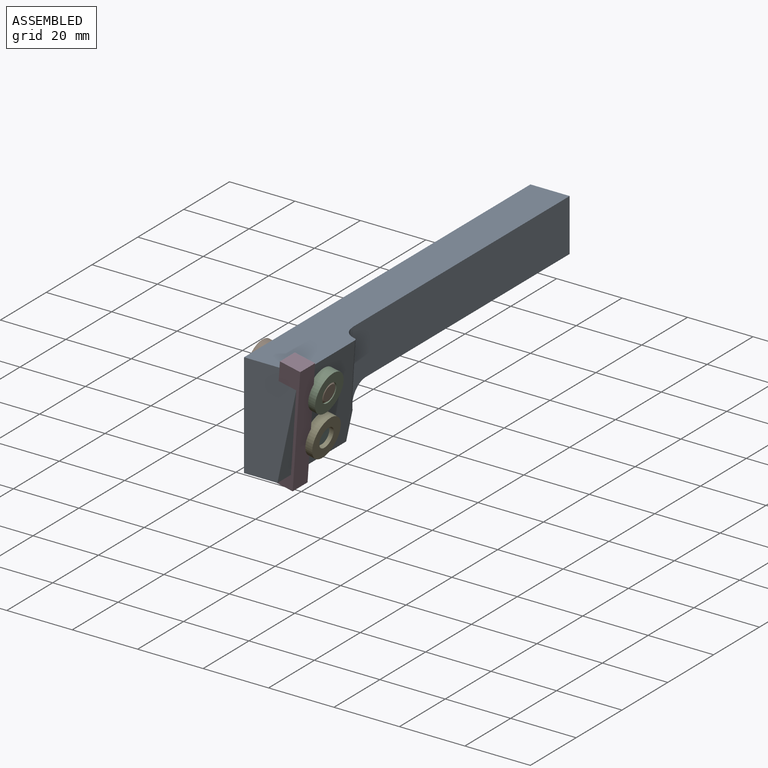
[diagram: assembled view]
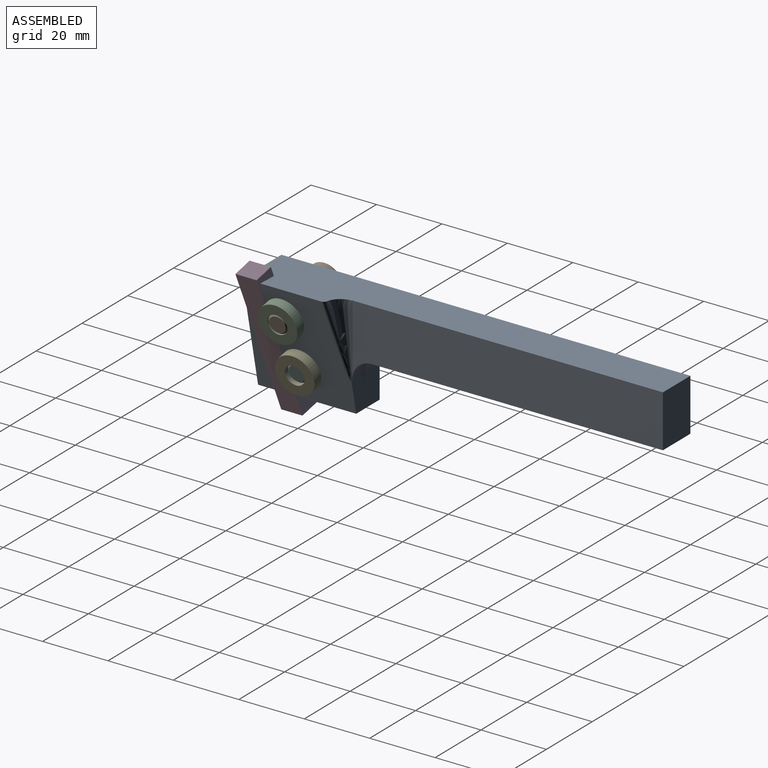
[diagram: assembled view, second angle]
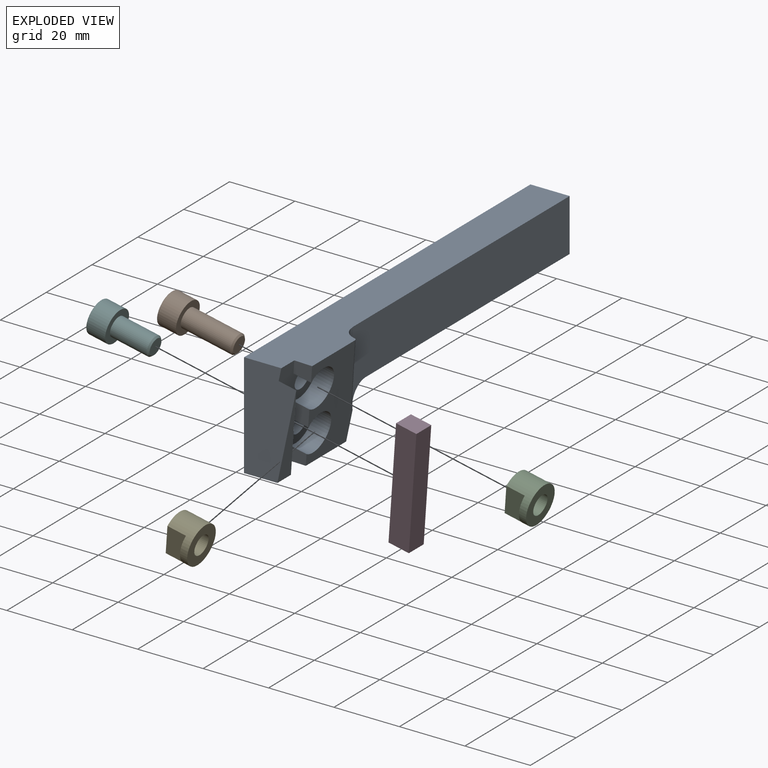
[diagram: exploded view]
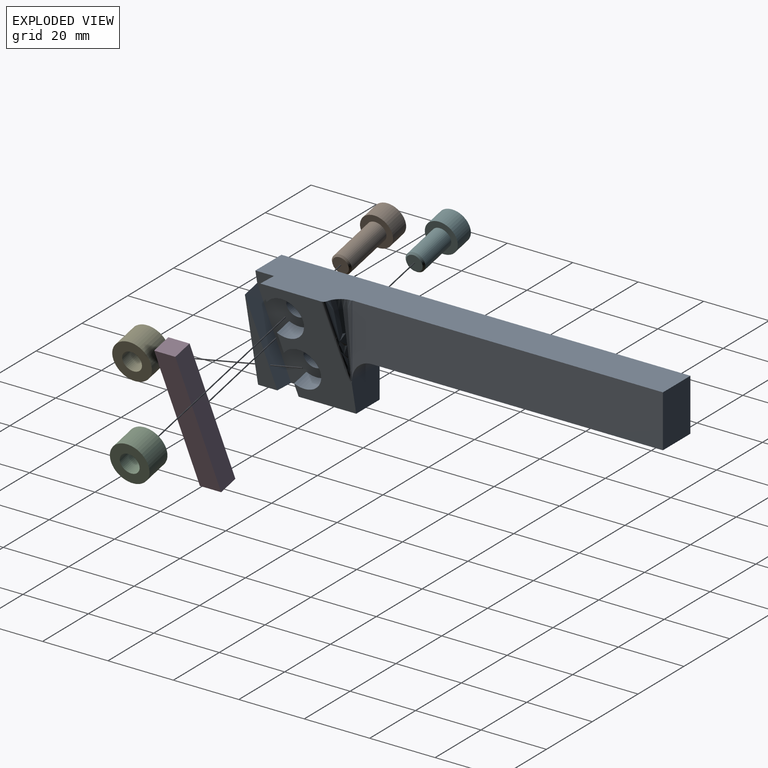
[diagram: exploded view, second angle]
ASSEMBLY  parts=6 mates=9
PART A: 27 faces, bbox 20.1x125.3x36.6 mm
  f0: plane 32x24.57mm, normal (0.98,0,-0.21), area 410.6mm2, adj f1,f2,f3,f5,f13,f15,f18,f19
  f1: plane 125.04x17.04mm, normal (0,0,1), area 1599.6mm2, adj f0,f2,f5,f8,f9,f12,f14,f17
  f2: plane 32x12.22mm, normal (0,1,0), area 114.9mm2, adj f0,f1,f9,f10,f13,f14,f20,f21
  f3: plane 6.94x6.61mm, normal (-0.04,-0.98,-0.2), area 33.3mm2, adj f0,f17,f18,f19
  f4: cylinder r=3.1mm len=7mm, axis (0.98,0,-0.21), area 87.7mm2, adj f17,f26
  f5: plane 6.51x5.34mm, normal (-0.04,-0.98,-0.2), area 27.4mm2, adj f0,f1,f17,f18
  f6: cylinder r=3.1mm len=8.63mm, axis (0.98,0,-0.21), area 146.1mm2, adj f17,f24
  f7: plane 27.11x5.89mm, normal (0.98,0,-0.21), area 81.6mm2, adj f8,f13,f16
  f8: plane 32x15.96mm, normal (0,-1,0), area 410.9mm2, adj f1,f7,f13,f14,f16,f17
  f9: plane 95x22mm, normal (1,0,0), area 1527.7mm2, adj f1,f2,f10,f11,f12
  f10: cylinder r=6mm len=12mm, axis (-1,0,0), area 113.1mm2, adj f2,f9,f11,f14
  f11: plane 89x12mm, normal (0,0,-1), area 1068mm2, adj f9,f10,f12,f14
  f12: plane 16x12mm, normal (0,1,0), area 192mm2, adj f1,f9,f11,f14
  f13: plane 30x10.2mm, normal (0,0,-1), area 269.4mm2, adj f0,f2,f7,f8,f14,f15,f16,f17
  f14: plane 125x32mm, normal (-1,0,0), area 2357.6mm2, adj f1,f2,f8,f10,f11,f12,f13,f23
  f15: plane 6.42x4.9mm, normal (-0.04,-0.98,-0.2), area 24.9mm2, adj f0,f13,f17,f19
  f16: plane 28.25x11.39mm, normal (0.04,0.98,0.2), area 159.1mm2, adj f7,f8,f13,f17
  f17: plane 32x20.55mm, normal (0.98,0,-0.21), area 351.9mm2, adj f1,f3,f4,f5,f6,f8,f13,f15
  f18: cylinder r=6mm len=12.88mm, axis (0.98,0,-0.21), area 151.8mm2, adj f0,f3,f5,f17
  f19: cylinder r=6mm len=12.88mm, axis (0.98,0,-0.21), area 151.8mm2, adj f0,f3,f15,f17
  f20: cone r=5mm half-angle=12deg, axis (0.21,0,0.98), area 73.5mm2, adj f1,f2,f21,f22
  f21: plane 0.84x0.41mm, normal (0.21,0,0.98), area 0mm2, adj f0,f2,f20,f22
  f22: bspline ~27.39x7.56mm, area 28.6mm2, adj f0,f1,f20,f21
  f23: cylinder r=4.5mm len=9.52mm, axis (0.98,0,-0.21), area 69.7mm2, adj f14,f24
  f24: plane 9x8.8mm, normal (-0.98,0,0.21), area 33.4mm2, adj f6,f23
  f25: cylinder r=4.5mm len=9.49mm, axis (0.98,0,-0.21), area 66.4mm2, adj f14,f26
  f26: plane 9x8.8mm, normal (-0.98,0,0.21), area 33.4mm2, adj f4,f25
PART B: 14 faces, bbox 10.8x10.8x22 mm
  f0: plane 10x10mm, normal (0,0,1), area 50.3mm2, adj f1,f3
  f1: cylinder r=5mm len=10mm, axis (0,0,-1), area 180.6mm2, adj f0,f12
  f2: plane 9.5x9.5mm, normal (0,0,-1), area 47.5mm2, adj f5,f6,f7,f8,f9,f10,f12
  f3: cylinder r=3mm len=15.5mm, axis (0,0,-1), area 292.2mm2, adj f0,f13
  f4: plane 5x5mm, normal (0,0,1), area 19.6mm2, adj f13
  f5: plane 4x2.6mm, normal (0.87,-0.5,0), area 12mm2, adj f2,f6,f10,f11
  f6: plane 4x2.6mm, normal (0.87,0.5,0), area 12mm2, adj f2,f5,f7,f11
  f7: plane 4x3mm, normal (0,1,0), area 12mm2, adj f2,f6,f8,f11
  f8: plane 4x2.6mm, normal (-0.87,0.5,0), area 12mm2, adj f2,f7,f9,f11
  f9: plane 4x2.6mm, normal (-0.87,-0.5,0), area 12mm2, adj f2,f8,f10,f11
  f10: plane 4x3mm, normal (0,-1,0), area 12mm2, adj f2,f5,f9,f11
  f11: plane 6x5.2mm, normal (0,0,-1), area 23.4mm2, adj f5,f6,f7,f8,f9,f10
  f12: torus R=4.75mm, axis (0,0,1), area 12.1mm2, adj f1,f2
  f13: cone r=2.5mm half-angle=45deg, axis (0,0,-1), area 12.2mm2, adj f3,f4
PART C: 6 faces, bbox 10.3x12x13.4 mm
  f0: cylinder r=3mm len=9.07mm, axis (-0.98,0,0.21), area 150.8mm2, adj f2,f3
  f1: cylinder r=6mm len=13.4mm, axis (-0.98,0,0.21), area 242mm2, adj f2,f3,f4,f5
  f2: plane 12x11.74mm, normal (0.98,0,-0.21), area 84.8mm2, adj f0,f1
  f3: plane 11.74x9.9mm, normal (-0.98,0,0.21), area 71.5mm2, adj f0,f1,f4
  f4: plane 10.12x7.52mm, normal (0,-1,0), area 52.4mm2, adj f1,f3,f5
  f5: plane 8.92x2.1mm, normal (-0.98,0,0.21), area 13.3mm2, adj f1,f4
PART D: 6 faces, bbox 14.3x14.8x39.6 mm
  f0: plane 39.59x14.35mm, normal (-0.04,-0.98,-0.2), area 254mm2, adj f1,f3,f4,f5
  f1: plane 6.49x6.21mm, normal (-0.21,0,-0.98), area 41.2mm2, adj f0,f2,f4,f5
  f2: plane 39.59x14.35mm, normal (0.04,0.98,0.2), area 254mm2, adj f1,f3,f4,f5
  f3: plane 6.49x6.21mm, normal (0.21,0,0.98), area 41.2mm2, adj f0,f2,f4,f5
  f4: plane 38.27x14.81mm, normal (0.98,0,-0.21), area 254mm2, adj f0,f1,f2,f3
  f5: plane 38.27x14.81mm, normal (-0.98,0,0.21), area 254mm2, adj f0,f1,f2,f3
PART E: same geometry as C
PART F: 14 faces, bbox 10.8x10.8x18 mm
  f0: plane 10x10mm, normal (0,0,1), area 50.3mm2, adj f1,f3
  f1: cylinder r=5mm len=10mm, axis (0,0,-1), area 180.6mm2, adj f0,f12
  f2: plane 9.5x9.5mm, normal (0,0,-1), area 47.5mm2, adj f5,f6,f7,f8,f9,f10,f12
  f3: cylinder r=3mm len=11.5mm, axis (0,0,-1), area 216.8mm2, adj f0,f13
  f4: plane 5x5mm, normal (0,0,1), area 19.6mm2, adj f13
  f5: plane 4x2.6mm, normal (0.87,-0.5,0), area 12mm2, adj f2,f6,f10,f11
  f6: plane 4x2.6mm, normal (0.87,0.5,0), area 12mm2, adj f2,f5,f7,f11
  f7: plane 4x3mm, normal (0,1,0), area 12mm2, adj f2,f6,f8,f11
  f8: plane 4x2.6mm, normal (-0.87,0.5,0), area 12mm2, adj f2,f7,f9,f11
  f9: plane 4x2.6mm, normal (-0.87,-0.5,0), area 12mm2, adj f2,f8,f10,f11
  f10: plane 4x3mm, normal (0,-1,0), area 12mm2, adj f2,f5,f9,f11
  f11: plane 6x5.2mm, normal (0,0,-1), area 23.4mm2, adj f5,f6,f7,f8,f9,f10
  f12: torus R=4.75mm, axis (0,0,1), area 12.1mm2, adj f1,f2
  f13: cone r=2.5mm half-angle=45deg, axis (0,0,-1), area 12.2mm2, adj f3,f4
PLACE A at identity fixed
PLACE B rot(axis=(-0.78,0,-0.63),180deg) t=(-13.02,-124.19,38.43)mm
PLACE C rot(axis=(0.98,0,-0.21),12deg) t=(-9.79,-3.62,26.1)mm
PLACE D t=(0.09,-0.1,0.45)mm
PLACE E rot(axis=(0.98,0,-0.21),12deg) t=(-12.84,-0.5,11.75)mm
PLACE F rot(axis=(-0.78,0,-0.63),180deg) t=(10.66,-99.22,-46.58)mm
MATE cylindrical A.f23 <-> C.f0  axis (0.98,0,-0.21) through (15.13,-113.57,-8.8)mm
MATE fastened B.f1 <-> A.f23  axis (0.98,0,-0.21) through (2.41,-113.57,-6.1)mm
MATE revolute A.f23 <-> C.f0  axis (0.98,0,-0.21) through (9.75,-113.57,-7.66)mm
MATE parallel E.f4 <-> A.f16  axis (-0.04,-0.98,-0.2) through (9.83,-114.26,-23.51)mm
MATE fastened F.f1 <-> A.f25  axis (-0.98,0,0.21) through (2.3,-110.45,-21.08)mm
MATE parallel C.f4 <-> A.f16  axis (-0.04,-0.98,-0.2) through (12.88,-117.38,-9.15)mm
MATE planar A.f17 <-> D.f5  axis (0.98,0,-0.21) through (10.49,-118.41,-4.19)mm
MATE planar A.f16 <-> D.f0  axis (0.04,0.98,0.2) through (10.31,-121.99,-18.16)mm
MATE revolute A.f25 <-> E.f0  axis (0.98,0,-0.21) through (6.7,-110.45,-22.01)mm
